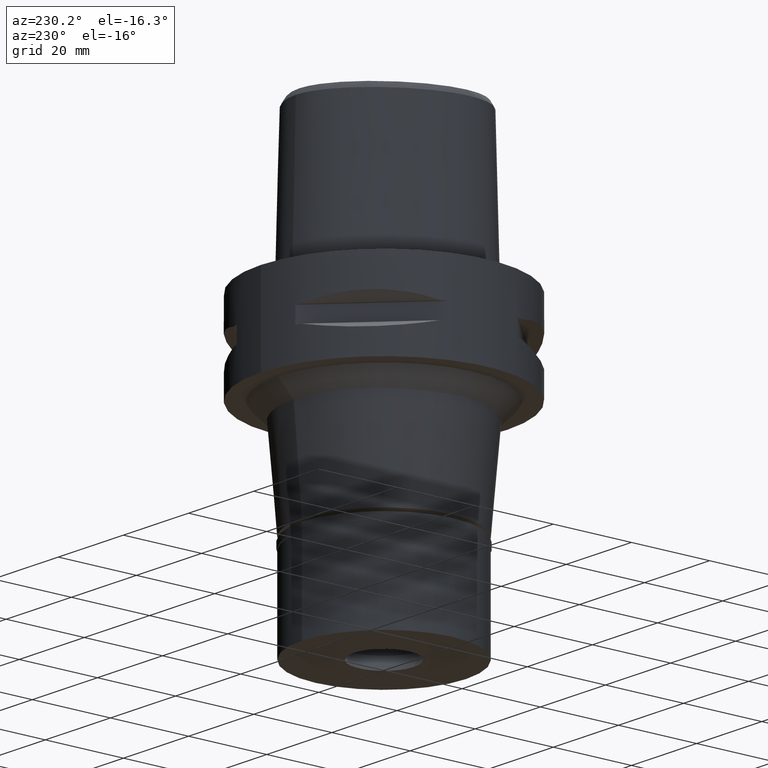
[diagram: clean part render]
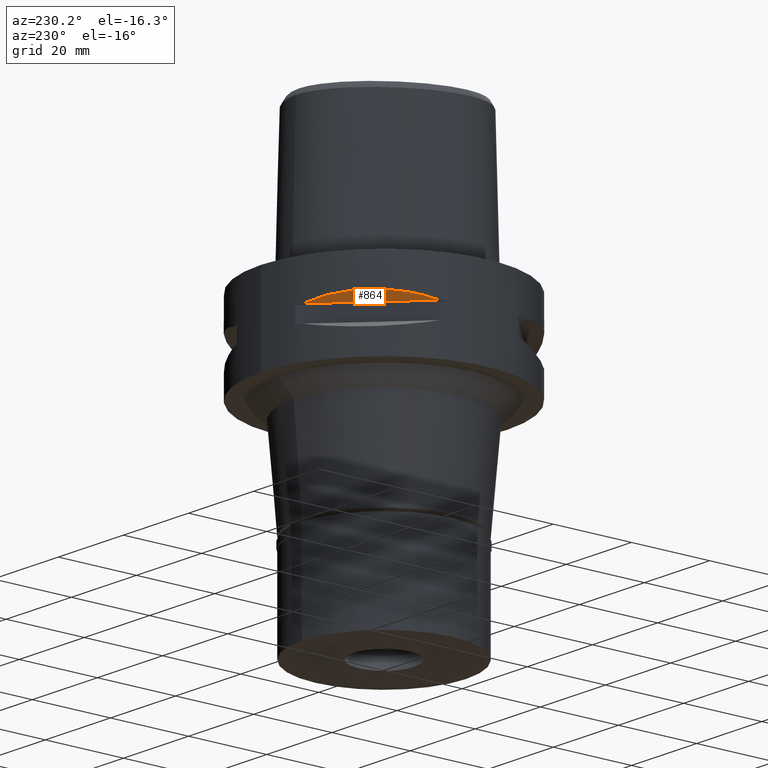
[diagram: same view with one face highlighted and labeled with its STEP entity id]
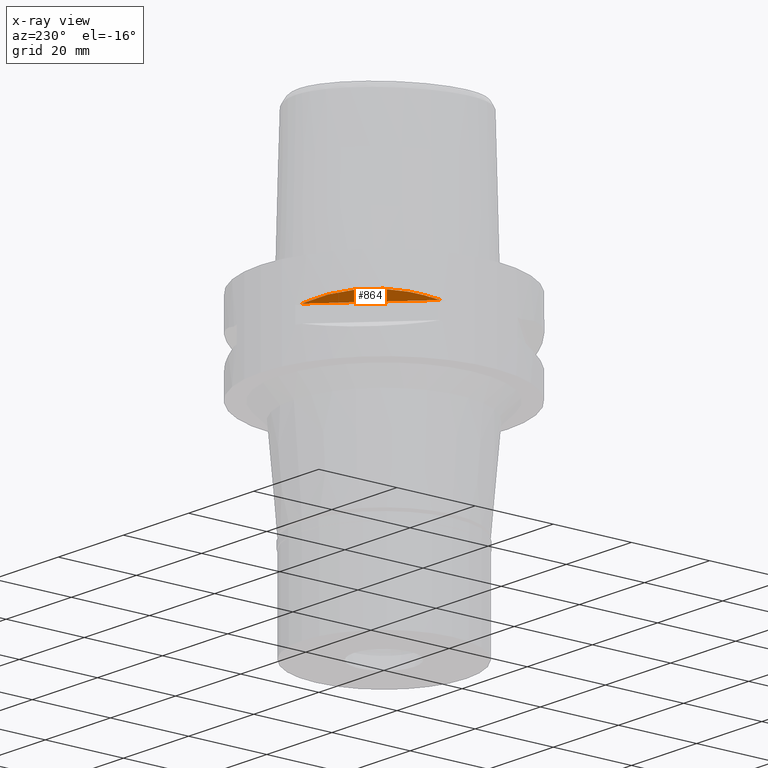
[diagram: x-ray of the same camera — body ghosted, the highlighted face saturated]
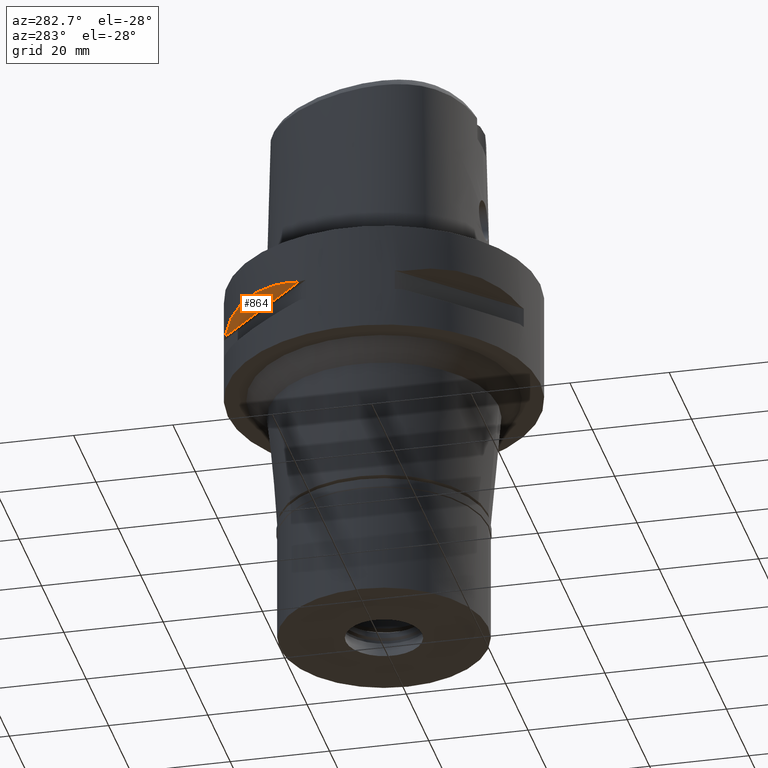
[diagram: same view with one face highlighted and labeled with its STEP entity id]
A machine part, auxiliary view. The second image highlights one B-rep face of the part: STEP entity #864.
The next image is the same camera in x-ray: the body ghosted, the highlighted face saturated — about 0% of this face is hidden behind the body in this view.
A second angle (auxiliary view) of the same face is appended — the face is thin or edge-on in the first view.
In plain terms, the highlighted planar face has unit normal (0.3536, -0.3536, 0.866).
Its self-contained STEP definition (entity closure, byte-faithful):
#62 = FACE_OUTER_BOUND ( 'NONE', #2464, .T. ) ;
#357 = CARTESIAN_POINT ( 'NONE',  ( -10.44775724750000023, 29.71690375017999841, -9.949999999998999201 ) ) ;
#443 = CARTESIAN_POINT ( 'NONE',  ( -18.81455742157509903, 25.37277178172508840, -8.309746333145048069 ) ) ;
#459 = PLANE ( 'NONE',  #1191 ) ;
#465 = CARTESIAN_POINT ( 'NONE',  ( -10.44775724750000023, 29.71690375017999841, -9.949999999998999201 ) ) ;
#587 = EDGE_CURVE ( 'NONE', #2823, #3577, #2092, .T. ) ;
#790 = EDGE_CURVE ( 'NONE', #2823, #3577, #4399, .T. ) ;
#812 = CARTESIAN_POINT ( 'NONE',  ( -29.71690375017999841, 10.44775724750000023, -9.949999999998999201 ) ) ;
#864 = ADVANCED_FACE ( 'NONE', ( #62 ), #459, .F. ) ;
#887 = CARTESIAN_POINT ( 'NONE',  ( -12.70092055726457225, 28.92474506846247451, -9.353547358238497367 ) ) ;
#1191 = AXIS2_PLACEMENT_3D ( 'NONE', #1574, #3083, #4569 ) ;
#1574 = CARTESIAN_POINT ( 'NONE',  ( -37.12310601229000184, 8.838834764832000701, -7.583270440698999693 ) ) ;
#1779 = CARTESIAN_POINT ( 'NONE',  ( -10.44775724750000023, 29.71690375017999841, -9.949999999998999201 ) ) ;
#1950 = CARTESIAN_POINT ( 'NONE',  ( -20.64154884331406237, 23.90617837143844682, -8.160627831321422221 ) ) ;
#2092 = B_SPLINE_CURVE_WITH_KNOTS ( 'NONE', 3,
 ( #465, #887, #4173, #443, #1950, #4525, #2772, #4575, #3497, #812 ),
 .UNSPECIFIED., .F., .F.,
 ( 4, 2, 2, 2, 4 ),
 ( 0.0000000000000000000, 0.2500000000000000000, 0.5000000000000000000, 0.7500000000000000000, 1.000000000000000000 ),
 .UNSPECIFIED. ) ;
#2389 = CARTESIAN_POINT ( 'NONE',  ( -29.71690375017999841, 10.44775724750000023, -9.949999999998999201 ) ) ;
#2435 = ORIENTED_EDGE ( 'NONE', *, *, #587, .F. ) ;
#2464 = EDGE_LOOP ( 'NONE', ( #4255, #2435 ) ) ;
#2772 = CARTESIAN_POINT ( 'NONE',  ( -25.37272068394556257, 18.81462633037747167, -8.309724968578809268 ) ) ;
#2823 = VERTEX_POINT ( 'NONE', #1779 ) ;
#3083 = DIRECTION ( 'NONE',  ( 0.3535533905933054277, -0.3535533905933054277, 0.8660254037844128394 ) ) ;
#3497 = CARTESIAN_POINT ( 'NONE',  ( -28.92472615203844910, 12.70097436187914575, -9.353533115194341718 ) ) ;
#3577 = VERTEX_POINT ( 'NONE', #2389 ) ;
#4170 = VECTOR ( 'NONE', #4765, 1000.000000000000114 ) ;
#4173 = CARTESIAN_POINT ( 'NONE',  ( -14.84422749192772883, 27.88214534473898354, -8.906206096515608905 ) ) ;
#4255 = ORIENTED_EDGE ( 'NONE', *, *, #790, .T. ) ;
#4399 = LINE ( 'NONE', #357, #4170 ) ;
#4525 = CARTESIAN_POINT ( 'NONE',  ( -23.90617837143843971, 20.64154884331406237, -8.160613588453220046 ) ) ;
#4569 = DIRECTION ( 'NONE',  ( -0.7071067811865475727, -0.7071067811865475727, 0.0000000000000000000 ) ) ;
#4575 = CARTESIAN_POINT ( 'NONE',  ( -27.88210502980663819, 14.84430321584963330, -8.906184731949368327 ) ) ;
#4765 = DIRECTION ( 'NONE',  ( -0.7071067811865474617, -0.7071067811865474617, 0.0000000000000000000 ) ) ;